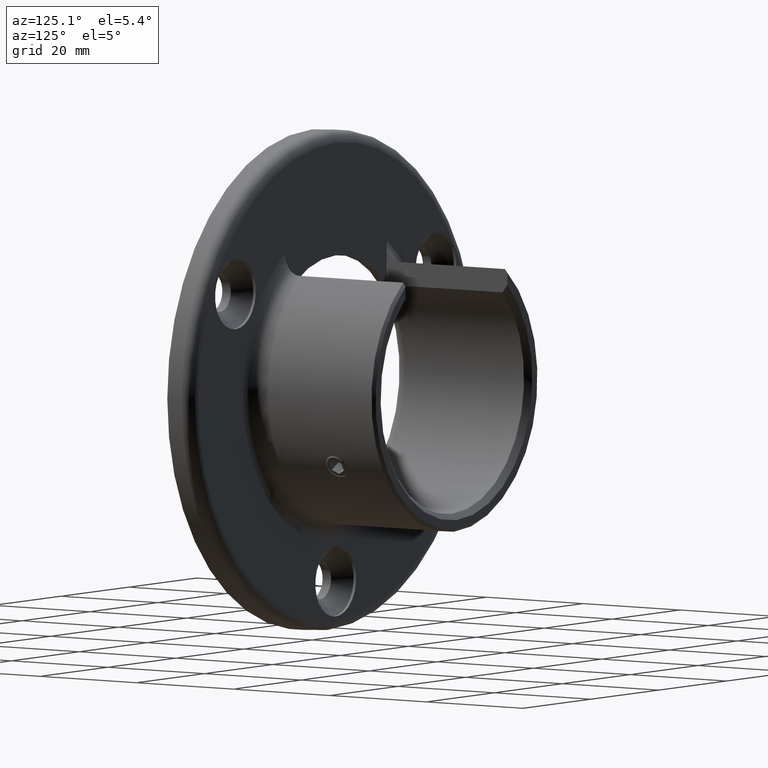
[diagram: clean part render]
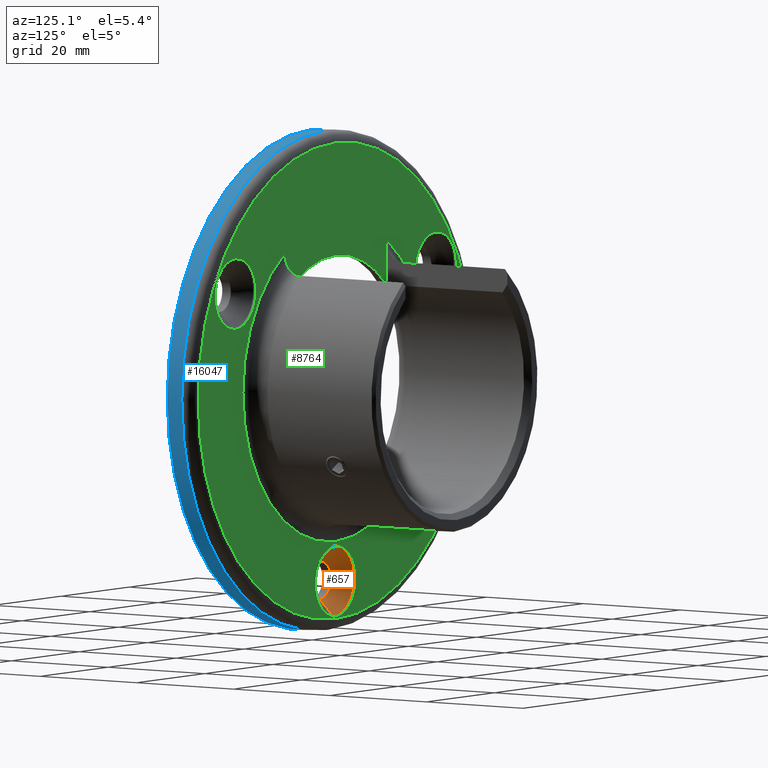
[diagram: same view with three faces highlighted in distinct colors, each labeled with its STEP entity id]
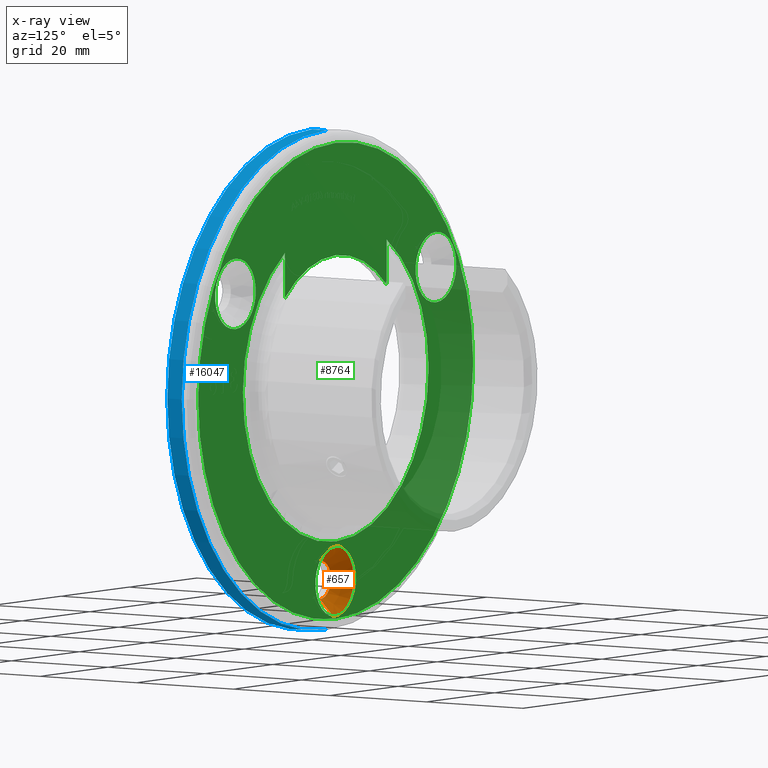
[diagram: x-ray of the same camera — body ghosted, the three highlighted faces saturated]
A machine part, auxiliary view with three faces highlighted in distinct colors.
The next image is the same camera in x-ray (body ghosted, the three faces saturated) — at least one of them is partly hidden behind the body in this view.
Their STEP definitions:

[orange] entity #657 — the highlighted conical surface has half-angle 45 deg.
#15 = VERTEX_POINT ( 'NONE', #14912 ) ;
#228 = DIRECTION ( 'NONE',  ( 0.000000000000000000, 0.000000000000000000, 1.000000000000000000 ) ) ;
#274 = EDGE_CURVE ( 'NONE', #3535, #15798, #12468, .T. ) ;
#402 = EDGE_CURVE ( 'NONE', #15, #15798, #3721, .T. ) ;
#438 = LINE ( 'NONE', #7986, #11594 ) ;
#446 = DIRECTION ( 'NONE',  ( 0.000000000000000000, 0.000000000000000000, 1.000000000000000000 ) ) ;
#657 = ADVANCED_FACE ( 'NONE', ( #19304 ), #11242, .F. ) ;
#1249 = CARTESIAN_POINT ( 'NONE',  ( 0.000000000000000000, 4.500000000000000888, -28.10000000000000142 ) ) ;
#2010 = CARTESIAN_POINT ( 'NONE',  ( 3.980102097228899711E-16, 1.749999999999998890, -37.35000000000000142 ) ) ;
#2151 = EDGE_CURVE ( 'NONE', #4544, #15, #438, .T. ) ;
#2290 = CARTESIAN_POINT ( 'NONE',  ( 0.000000000000000000, 1.749999999999998890, -30.84999999999999787 ) ) ;
#2787 = EDGE_CURVE ( 'NONE', #4544, #3535, #6229, .T. ) ;
#3535 = VERTEX_POINT ( 'NONE', #2290 ) ;
#3721 = CIRCLE ( 'NONE', #16782, 5.999999999999998224 ) ;
#4432 = ORIENTED_EDGE ( 'NONE', *, *, #2151, .T. ) ;
#4544 = VERTEX_POINT ( 'NONE', #2010 ) ;
#4631 = DIRECTION ( 'NONE',  ( 0.000000000000000000, 0.000000000000000000, 1.000000000000000000 ) ) ;
#6229 = CIRCLE ( 'NONE', #14563, 3.249999999999999556 ) ;
#6367 = DIRECTION ( 'NONE',  ( 8.659560562354930393E-17, 0.7071067811865479058, -0.7071067811865472397 ) ) ;
#6733 = AXIS2_PLACEMENT_3D ( 'NONE', #9498, #15651, #228 ) ;
#7545 = DIRECTION ( 'NONE',  ( 0.000000000000000000, 0.7071067811865479058, 0.7071067811865472397 ) ) ;
#7986 = CARTESIAN_POINT ( 'NONE',  ( 7.347880794884119736E-16, 4.500000000000000888, -40.09999999999999432 ) ) ;
#9498 = CARTESIAN_POINT ( 'NONE',  ( 0.000000000000000000, 4.500000000000000888, -34.10000000000000142 ) ) ;
#9715 = CARTESIAN_POINT ( 'NONE',  ( 0.000000000000000000, 1.749999999999998890, -34.10000000000000142 ) ) ;
#10975 = ORIENTED_EDGE ( 'NONE', *, *, #274, .F. ) ;
#11163 = DIRECTION ( 'NONE',  ( -0.000000000000000000, 1.000000000000000000, -0.000000000000000000 ) ) ;
#11242 = CONICAL_SURFACE ( 'NONE', #6733, 5.999999999999998224, 0.7853981633974479459 ) ;
#11594 = VECTOR ( 'NONE', #6367, 999.9999999999998863 ) ;
#12468 = LINE ( 'NONE', #1249, #18338 ) ;
#13874 = DIRECTION ( 'NONE',  ( -0.000000000000000000, 1.000000000000000000, -0.000000000000000000 ) ) ;
#14300 = EDGE_LOOP ( 'NONE', ( #16831, #4432, #19530, #10975 ) ) ;
#14563 = AXIS2_PLACEMENT_3D ( 'NONE', #9715, #11163, #446 ) ;
#14912 = CARTESIAN_POINT ( 'NONE',  ( 7.347880794884119736E-16, 4.500000000000000888, -40.09999999999999432 ) ) ;
#15651 = DIRECTION ( 'NONE',  ( -0.000000000000000000, 1.000000000000000000, -0.000000000000000000 ) ) ;
#15798 = VERTEX_POINT ( 'NONE', #19257 ) ;
#16782 = AXIS2_PLACEMENT_3D ( 'NONE', #18394, #13874, #4631 ) ;
#16831 = ORIENTED_EDGE ( 'NONE', *, *, #2787, .F. ) ;
#18338 = VECTOR ( 'NONE', #7545, 999.9999999999998863 ) ;
#18394 = CARTESIAN_POINT ( 'NONE',  ( 0.000000000000000000, 4.500000000000000888, -34.10000000000000142 ) ) ;
#19257 = CARTESIAN_POINT ( 'NONE',  ( 0.000000000000000000, 4.500000000000000888, -28.10000000000000142 ) ) ;
#19304 = FACE_OUTER_BOUND ( 'NONE', #14300, .T. ) ;
#19530 = ORIENTED_EDGE ( 'NONE', *, *, #402, .T. ) ;

[blue] entity #16047 — the highlighted cylindrical surface (partial cylindrical patch) has radius 42.5 mm, axis along (-0, -1, -0).
#86 = EDGE_CURVE ( 'NONE', #13842, #5602, #6391, .T. ) ;
#435 = CYLINDRICAL_SURFACE ( 'NONE', #11975, 42.50000000000000711 ) ;
#1605 = DIRECTION ( 'NONE',  ( -0.000000000000000000, -1.000000000000000000, -0.000000000000000000 ) ) ;
#2543 = CARTESIAN_POINT ( 'NONE',  ( 0.000000000000000000, 0.000000000000000000, 0.000000000000000000 ) ) ;
#2980 = AXIS2_PLACEMENT_3D ( 'NONE', #19277, #3807, #11542 ) ;
#3399 = ORIENTED_EDGE ( 'NONE', *, *, #12555, .F. ) ;
#3807 = DIRECTION ( 'NONE',  ( -0.000000000000000000, -1.000000000000000000, -0.000000000000000000 ) ) ;
#5004 = CARTESIAN_POINT ( 'NONE',  ( 5.204748896376252474E-15, 5.000000000000000000, 42.50000000000000711 ) ) ;
#5602 = VERTEX_POINT ( 'NONE', #9658 ) ;
#5850 = DIRECTION ( 'NONE',  ( 0.000000000000000000, 0.000000000000000000, 1.000000000000000000 ) ) ;
#6391 = CIRCLE ( 'NONE', #2980, 42.50000000000000711 ) ;
#6698 = VERTEX_POINT ( 'NONE', #16223 ) ;
#7415 = ORIENTED_EDGE ( 'NONE', *, *, #86, .T. ) ;
#7771 = CARTESIAN_POINT ( 'NONE',  ( 0.000000000000000000, 5.000000000000000000, -42.50000000000000711 ) ) ;
#8037 = EDGE_LOOP ( 'NONE', ( #7415, #15834, #11460, #3399 ) ) ;
#8178 = DIRECTION ( 'NONE',  ( -0.000000000000000000, -1.000000000000000000, -0.000000000000000000 ) ) ;
#8454 = EDGE_CURVE ( 'NONE', #5602, #11698, #18831, .T. ) ;
#9223 = AXIS2_PLACEMENT_3D ( 'NONE', #2543, #10478, #5850 ) ;
#9420 = CIRCLE ( 'NONE', #9223, 42.50000000000000711 ) ;
#9442 = VECTOR ( 'NONE', #1605, 1000.000000000000000 ) ;
#9658 = CARTESIAN_POINT ( 'NONE',  ( 5.204748896376252474E-15, 3.000000000000000000, 42.50000000000000711 ) ) ;
#10478 = DIRECTION ( 'NONE',  ( 0.000000000000000000, 1.000000000000000000, 0.000000000000000000 ) ) ;
#11460 = ORIENTED_EDGE ( 'NONE', *, *, #13059, .T. ) ;
#11542 = DIRECTION ( 'NONE',  ( 0.000000000000000000, 0.000000000000000000, 1.000000000000000000 ) ) ;
#11698 = VERTEX_POINT ( 'NONE', #11898 ) ;
#11898 = CARTESIAN_POINT ( 'NONE',  ( 5.204748896376252474E-15, 0.000000000000000000, 42.50000000000000711 ) ) ;
#11975 = AXIS2_PLACEMENT_3D ( 'NONE', #13219, #16281, #18157 ) ;
#12555 = EDGE_CURVE ( 'NONE', #13842, #6698, #15787, .T. ) ;
#12937 = VECTOR ( 'NONE', #8178, 1000.000000000000000 ) ;
#13059 = EDGE_CURVE ( 'NONE', #11698, #6698, #9420, .T. ) ;
#13219 = CARTESIAN_POINT ( 'NONE',  ( 0.000000000000000000, 5.000000000000000000, 0.000000000000000000 ) ) ;
#13842 = VERTEX_POINT ( 'NONE', #14717 ) ;
#14717 = CARTESIAN_POINT ( 'NONE',  ( 0.000000000000000000, 3.000000000000000000, -42.50000000000000711 ) ) ;
#15505 = FACE_OUTER_BOUND ( 'NONE', #8037, .T. ) ;
#15787 = LINE ( 'NONE', #7771, #9442 ) ;
#15834 = ORIENTED_EDGE ( 'NONE', *, *, #8454, .T. ) ;
#16047 = ADVANCED_FACE ( 'NONE', ( #15505 ), #435, .T. ) ;
#16223 = CARTESIAN_POINT ( 'NONE',  ( 0.000000000000000000, 0.000000000000000000, -42.50000000000000711 ) ) ;
#16281 = DIRECTION ( 'NONE',  ( -0.000000000000000000, -1.000000000000000000, -0.000000000000000000 ) ) ;
#18157 = DIRECTION ( 'NONE',  ( 0.000000000000000000, 0.000000000000000000, -1.000000000000000000 ) ) ;
#18831 = LINE ( 'NONE', #5004, #12937 ) ;
#19277 = CARTESIAN_POINT ( 'NONE',  ( 0.000000000000000000, 3.000000000000000000, 0.000000000000000000 ) ) ;

[green] entity #8764 — the highlighted planar face has unit normal (0, 1, 0).
#46 = CARTESIAN_POINT ( 'NONE',  ( 29.53146626904951333, 5.000000000000000000, 17.04999999999972360 ) ) ;
#171 = VERTEX_POINT ( 'NONE', #7788 ) ;
#213 = CIRCLE ( 'NONE', #18948, 6.000000000000001776 ) ;
#224 = DIRECTION ( 'NONE',  ( 0.000000000000000000, 0.000000000000000000, 1.000000000000000000 ) ) ;
#239 = CARTESIAN_POINT ( 'NONE',  ( 0.000000000000000000, 5.000000000000000000, 0.000000000000000000 ) ) ;
#465 = CIRCLE ( 'NONE', #2615, 21.35000000000000142 ) ;
#690 = CARTESIAN_POINT ( 'NONE',  ( 15.00000000000000355, 5.000000000000000000, 15.19284371011562662 ) ) ;
#730 = EDGE_CURVE ( 'NONE', #7576, #6379, #16108, .T. ) ;
#1059 = DIRECTION ( 'NONE',  ( 0.000000000000000000, 0.000000000000000000, 1.000000000000000000 ) ) ;
#1188 = DIRECTION ( 'NONE',  ( 0.000000000000000000, 1.000000000000000000, 0.000000000000000000 ) ) ;
#1195 = AXIS2_PLACEMENT_3D ( 'NONE', #16474, #4183, #2558 ) ;
#1273 = VERTEX_POINT ( 'NONE', #17934 ) ;
#1409 = CARTESIAN_POINT ( 'NONE',  ( -29.53146626904928240, 5.000000000000000000, 23.05000000000013571 ) ) ;
#1622 = EDGE_CURVE ( 'NONE', #14256, #3291, #9398, .T. ) ;
#1661 = PLANE ( 'NONE',  #4839 ) ;
#1673 = VERTEX_POINT ( 'NONE', #9832 ) ;
#1856 = ORIENTED_EDGE ( 'NONE', *, *, #5916, .F. ) ;
#1876 = AXIS2_PLACEMENT_3D ( 'NONE', #2676, #4029, #8890 ) ;
#2065 = CIRCLE ( 'NONE', #1195, 5.999999999999998224 ) ;
#2397 = CIRCLE ( 'NONE', #16811, 40.50000000000000711 ) ;
#2558 = DIRECTION ( 'NONE',  ( 0.000000000000000000, 0.000000000000000000, 1.000000000000000000 ) ) ;
#2615 = AXIS2_PLACEMENT_3D ( 'NONE', #5659, #1188, #1059 ) ;
#2676 = CARTESIAN_POINT ( 'NONE',  ( 0.000000000000000000, 5.000000000000000000, 0.000000000000000000 ) ) ;
#2687 = ORIENTED_EDGE ( 'NONE', *, *, #12997, .F. ) ;
#2882 = EDGE_LOOP ( 'NONE', ( #1856, #4613 ) ) ;
#3122 = EDGE_LOOP ( 'NONE', ( #19010, #19104 ) ) ;
#3291 = VERTEX_POINT ( 'NONE', #13782 ) ;
#3295 = EDGE_CURVE ( 'NONE', #9168, #1273, #16933, .T. ) ;
#3301 = CARTESIAN_POINT ( 'NONE',  ( 0.000000000000000000, 5.000000000000000000, 0.000000000000000000 ) ) ;
#3919 = EDGE_CURVE ( 'NONE', #10790, #16766, #17418, .T. ) ;
#4029 = DIRECTION ( 'NONE',  ( 0.000000000000000000, 1.000000000000000000, 0.000000000000000000 ) ) ;
#4035 = ORIENTED_EDGE ( 'NONE', *, *, #3295, .F. ) ;
#4183 = DIRECTION ( 'NONE',  ( -0.000000000000000000, 1.000000000000000000, -0.000000000000000000 ) ) ;
#4264 = LINE ( 'NONE', #690, #10813 ) ;
#4282 = AXIS2_PLACEMENT_3D ( 'NONE', #6650, #14539, #11476 ) ;
#4310 = EDGE_LOOP ( 'NONE', ( #10919, #4035 ) ) ;
#4401 = VERTEX_POINT ( 'NONE', #20147 ) ;
#4425 = CARTESIAN_POINT ( 'NONE',  ( 7.347880794884121708E-16, 5.000000000000000000, -40.09999999999999432 ) ) ;
#4613 = ORIENTED_EDGE ( 'NONE', *, *, #730, .F. ) ;
#4676 = EDGE_CURVE ( 'NONE', #1273, #9168, #2065, .T. ) ;
#4839 = AXIS2_PLACEMENT_3D ( 'NONE', #3301, #6340, #20194 ) ;
#4862 = EDGE_CURVE ( 'NONE', #171, #15942, #9097, .T. ) ;
#4927 = ORIENTED_EDGE ( 'NONE', *, *, #5777, .F. ) ;
#5659 = CARTESIAN_POINT ( 'NONE',  ( 0.000000000000000000, 5.000000000000000000, 0.000000000000000000 ) ) ;
#5777 = EDGE_CURVE ( 'NONE', #14256, #171, #15457, .T. ) ;
#5916 = EDGE_CURVE ( 'NONE', #6379, #7576, #12021, .T. ) ;
#5979 = EDGE_CURVE ( 'NONE', #4401, #3291, #4264, .T. ) ;
#6022 = DIRECTION ( 'NONE',  ( -0.000000000000000000, 1.000000000000000000, -0.000000000000000000 ) ) ;
#6061 = DIRECTION ( 'NONE',  ( 0.000000000000000000, 0.000000000000000000, 1.000000000000000000 ) ) ;
#6108 = AXIS2_PLACEMENT_3D ( 'NONE', #46, #14149, #6061 ) ;
#6340 = DIRECTION ( 'NONE',  ( 0.000000000000000000, 1.000000000000000000, 0.000000000000000000 ) ) ;
#6379 = VERTEX_POINT ( 'NONE', #1409 ) ;
#6650 = CARTESIAN_POINT ( 'NONE',  ( -29.53146626904928240, 5.000000000000000000, 17.05000000000013927 ) ) ;
#6775 = ORIENTED_EDGE ( 'NONE', *, *, #4862, .F. ) ;
#6979 = DIRECTION ( 'NONE',  ( 0.000000000000000000, 0.000000000000000000, 1.000000000000000000 ) ) ;
#7040 = EDGE_LOOP ( 'NONE', ( #8097, #9530 ) ) ;
#7200 = CARTESIAN_POINT ( 'NONE',  ( -15.00000000000000000, 5.000000000000000000, 15.19284371011563017 ) ) ;
#7338 = FACE_BOUND ( 'NONE', #7040, .T. ) ;
#7576 = VERTEX_POINT ( 'NONE', #17512 ) ;
#7788 = CARTESIAN_POINT ( 'NONE',  ( -15.00000000000000000, 5.000000000000000000, 15.19284371011563017 ) ) ;
#8097 = ORIENTED_EDGE ( 'NONE', *, *, #3919, .F. ) ;
#8185 = ORIENTED_EDGE ( 'NONE', *, *, #1622, .T. ) ;
#8315 = EDGE_LOOP ( 'NONE', ( #4927, #8185, #19486, #2687, #6775 ) ) ;
#8764 = ADVANCED_FACE ( 'NONE', ( #7338, #11229, #17076, #14155, #12919 ), #1661, .T. ) ;
#8827 = AXIS2_PLACEMENT_3D ( 'NONE', #239, #18696, #12651 ) ;
#8890 = DIRECTION ( 'NONE',  ( 0.000000000000000000, 0.000000000000000000, 1.000000000000000000 ) ) ;
#9071 = AXIS2_PLACEMENT_3D ( 'NONE', #17226, #20180, #10804 ) ;
#9097 = CIRCLE ( 'NONE', #8827, 21.35000000000000142 ) ;
#9168 = VERTEX_POINT ( 'NONE', #4425 ) ;
#9339 = VECTOR ( 'NONE', #18255, 1000.000000000000000 ) ;
#9398 = CIRCLE ( 'NONE', #9071, 27.34999999999999787 ) ;
#9530 = ORIENTED_EDGE ( 'NONE', *, *, #15494, .F. ) ;
#9562 = CARTESIAN_POINT ( 'NONE',  ( -29.53146626904928240, 5.000000000000000000, 17.05000000000013927 ) ) ;
#9648 = CARTESIAN_POINT ( 'NONE',  ( 29.53146626904951333, 5.000000000000000000, 11.04999999999972360 ) ) ;
#9832 = CARTESIAN_POINT ( 'NONE',  ( 5.082284216461516537E-15, 5.000000000000000000, -40.50000000000000711 ) ) ;
#10790 = VERTEX_POINT ( 'NONE', #13373 ) ;
#10804 = DIRECTION ( 'NONE',  ( 0.000000000000000000, 0.000000000000000000, 1.000000000000000000 ) ) ;
#10813 = VECTOR ( 'NONE', #11610, 1000.000000000000000 ) ;
#10919 = ORIENTED_EDGE ( 'NONE', *, *, #4676, .F. ) ;
#11229 = FACE_BOUND ( 'NONE', #2882, .T. ) ;
#11476 = DIRECTION ( 'NONE',  ( 0.000000000000000000, 0.000000000000000000, 1.000000000000000000 ) ) ;
#11610 = DIRECTION ( 'NONE',  ( 0.000000000000000000, 0.000000000000000000, 1.000000000000000000 ) ) ;
#11732 = CARTESIAN_POINT ( 'NONE',  ( 2.614620916179599200E-15, 5.000000000000000000, 21.35000000000000142 ) ) ;
#12021 = CIRCLE ( 'NONE', #15005, 5.999999999999998224 ) ;
#12579 = DIRECTION ( 'NONE',  ( 0.000000000000000000, 1.000000000000000000, 0.000000000000000000 ) ) ;
#12651 = DIRECTION ( 'NONE',  ( 0.000000000000000000, 0.000000000000000000, 1.000000000000000000 ) ) ;
#12704 = DIRECTION ( 'NONE',  ( -0.000000000000000000, 1.000000000000000000, -0.000000000000000000 ) ) ;
#12919 = FACE_BOUND ( 'NONE', #8315, .T. ) ;
#12921 = CARTESIAN_POINT ( 'NONE',  ( -15.00000000000000178, 5.000000000000000000, 22.86968517492097064 ) ) ;
#12997 = EDGE_CURVE ( 'NONE', #15942, #4401, #465, .T. ) ;
#13127 = AXIS2_PLACEMENT_3D ( 'NONE', #15618, #6022, #16991 ) ;
#13373 = CARTESIAN_POINT ( 'NONE',  ( 29.53146626904951333, 5.000000000000000000, 23.04999999999972715 ) ) ;
#13782 = CARTESIAN_POINT ( 'NONE',  ( 15.00000000000000355, 5.000000000000000000, 22.86968517492096709 ) ) ;
#14149 = DIRECTION ( 'NONE',  ( -0.000000000000000000, 1.000000000000000000, -0.000000000000000000 ) ) ;
#14155 = FACE_OUTER_BOUND ( 'NONE', #3122, .T. ) ;
#14256 = VERTEX_POINT ( 'NONE', #12921 ) ;
#14539 = DIRECTION ( 'NONE',  ( -0.000000000000000000, 1.000000000000000000, -0.000000000000000000 ) ) ;
#15005 = AXIS2_PLACEMENT_3D ( 'NONE', #9562, #12704, #224 ) ;
#15437 = EDGE_CURVE ( 'NONE', #1673, #18959, #2397, .T. ) ;
#15457 = LINE ( 'NONE', #7200, #9339 ) ;
#15494 = EDGE_CURVE ( 'NONE', #16766, #10790, #213, .T. ) ;
#15618 = CARTESIAN_POINT ( 'NONE',  ( 0.000000000000000000, 5.000000000000000000, -34.10000000000000142 ) ) ;
#15942 = VERTEX_POINT ( 'NONE', #11732 ) ;
#16108 = CIRCLE ( 'NONE', #4282, 5.999999999999998224 ) ;
#16241 = DIRECTION ( 'NONE',  ( -0.000000000000000000, 1.000000000000000000, -0.000000000000000000 ) ) ;
#16306 = CARTESIAN_POINT ( 'NONE',  ( 29.53146626904951333, 5.000000000000000000, 17.04999999999972360 ) ) ;
#16474 = CARTESIAN_POINT ( 'NONE',  ( 0.000000000000000000, 5.000000000000000000, -34.10000000000000142 ) ) ;
#16766 = VERTEX_POINT ( 'NONE', #9648 ) ;
#16811 = AXIS2_PLACEMENT_3D ( 'NONE', #17441, #12579, #17373 ) ;
#16933 = CIRCLE ( 'NONE', #13127, 5.999999999999998224 ) ;
#16991 = DIRECTION ( 'NONE',  ( 0.000000000000000000, 0.000000000000000000, 1.000000000000000000 ) ) ;
#17076 = FACE_BOUND ( 'NONE', #4310, .T. ) ;
#17226 = CARTESIAN_POINT ( 'NONE',  ( 0.000000000000000000, 5.000000000000000000, 0.000000000000000000 ) ) ;
#17373 = DIRECTION ( 'NONE',  ( 0.000000000000000000, 0.000000000000000000, 1.000000000000000000 ) ) ;
#17418 = CIRCLE ( 'NONE', #6108, 6.000000000000001776 ) ;
#17441 = CARTESIAN_POINT ( 'NONE',  ( 0.000000000000000000, 5.000000000000000000, 0.000000000000000000 ) ) ;
#17512 = CARTESIAN_POINT ( 'NONE',  ( -29.53146626904928240, 5.000000000000000000, 11.05000000000013927 ) ) ;
#17934 = CARTESIAN_POINT ( 'NONE',  ( 0.000000000000000000, 5.000000000000000000, -28.10000000000000142 ) ) ;
#18255 = DIRECTION ( 'NONE',  ( -0.000000000000000000, -0.000000000000000000, -1.000000000000000000 ) ) ;
#18696 = DIRECTION ( 'NONE',  ( 0.000000000000000000, 1.000000000000000000, 0.000000000000000000 ) ) ;
#18948 = AXIS2_PLACEMENT_3D ( 'NONE', #16306, #16241, #6979 ) ;
#18959 = VERTEX_POINT ( 'NONE', #19742 ) ;
#19010 = ORIENTED_EDGE ( 'NONE', *, *, #19788, .T. ) ;
#19104 = ORIENTED_EDGE ( 'NONE', *, *, #15437, .T. ) ;
#19113 = CIRCLE ( 'NONE', #1876, 40.50000000000000711 ) ;
#19486 = ORIENTED_EDGE ( 'NONE', *, *, #5979, .F. ) ;
#19742 = CARTESIAN_POINT ( 'NONE',  ( 0.000000000000000000, 5.000000000000000000, 40.50000000000000711 ) ) ;
#19788 = EDGE_CURVE ( 'NONE', #18959, #1673, #19113, .T. ) ;
#20147 = CARTESIAN_POINT ( 'NONE',  ( 15.00000000000000355, 5.000000000000000000, 15.19284371011562662 ) ) ;
#20180 = DIRECTION ( 'NONE',  ( -0.000000000000000000, -1.000000000000000000, -0.000000000000000000 ) ) ;
#20194 = DIRECTION ( 'NONE',  ( 0.000000000000000000, -0.000000000000000000, 1.000000000000000000 ) ) ;